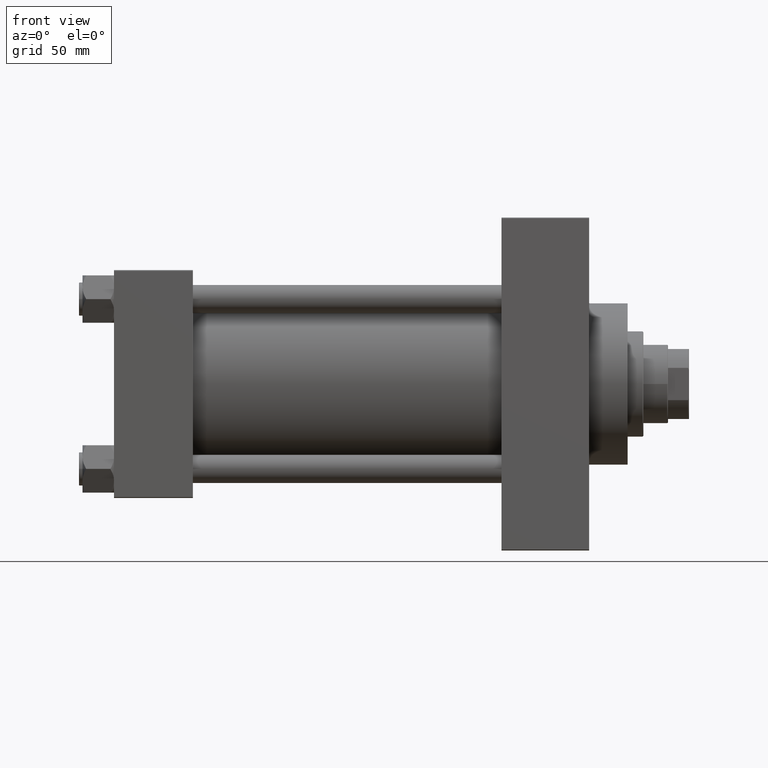
[diagram: clean part render]
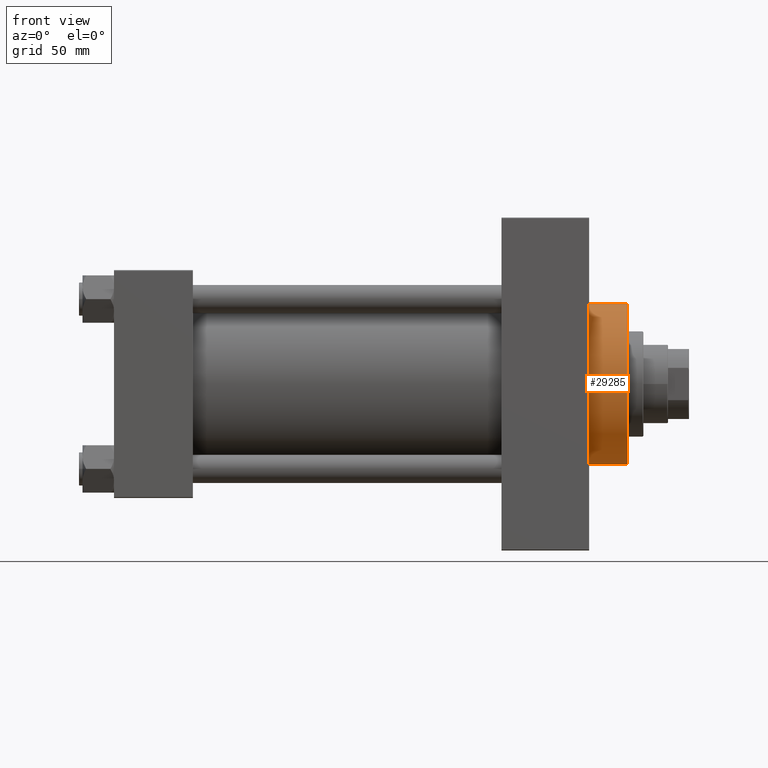
[diagram: same view with one face highlighted and labeled with its STEP entity id]
A machine part, front view. The second image highlights one B-rep face of the part: STEP entity #29285.
In plain terms, the highlighted cylindrical surface (partial cylindrical patch) has radius 46 mm, axis along (-1, -0, -0).
Its self-contained STEP definition (entity closure, byte-faithful):
#355 = FACE_OUTER_BOUND ( 'NONE', #5637, .T. ) ;
#2142 = AXIS2_PLACEMENT_3D ( 'NONE', #36860, #43428, #32505 ) ;
#2303 = CARTESIAN_POINT ( 'NONE',  ( 293.0000000000000000, 0.000000000000000000, 46.00000000000000000 ) ) ;
#4218 = DIRECTION ( 'NONE',  ( -1.000000000000000000, -0.000000000000000000, -0.000000000000000000 ) ) ;
#4730 = CARTESIAN_POINT ( 'NONE',  ( 293.0000000000000000, 0.000000000000000000, 0.000000000000000000 ) ) ;
#5637 = EDGE_LOOP ( 'NONE', ( #15236, #28985, #34839, #33032 ) ) ;
#6227 = EDGE_CURVE ( 'NONE', #11994, #42203, #41390, .T. ) ;
#7444 = CARTESIAN_POINT ( 'NONE',  ( 270.9999999999999432, 0.000000000000000000, 46.00000000000000000 ) ) ;
#7753 = CARTESIAN_POINT ( 'NONE',  ( 270.9999999999999432, 5.633375276077824704E-15, -46.00000000000000000 ) ) ;
#8598 = DIRECTION ( 'NONE',  ( 1.000000000000000000, 0.000000000000000000, 0.000000000000000000 ) ) ;
#8797 = EDGE_CURVE ( 'NONE', #46544, #18650, #38612, .T. ) ;
#11994 = VERTEX_POINT ( 'NONE', #36374 ) ;
#12921 = DIRECTION ( 'NONE',  ( 0.000000000000000000, 0.000000000000000000, -1.000000000000000000 ) ) ;
#15103 = CYLINDRICAL_SURFACE ( 'NONE', #46453, 46.00000000000000000 ) ;
#15236 = ORIENTED_EDGE ( 'NONE', *, *, #6227, .F. ) ;
#16043 = CIRCLE ( 'NONE', #2142, 46.00000000000000000 ) ;
#18501 = VECTOR ( 'NONE', #22959, 1000.000000000000000 ) ;
#18650 = VERTEX_POINT ( 'NONE', #7444 ) ;
#21576 = EDGE_CURVE ( 'NONE', #18650, #42203, #16043, .T. ) ;
#22731 = CARTESIAN_POINT ( 'NONE',  ( 293.0000000000000000, 5.633375276077824704E-15, -46.00000000000000000 ) ) ;
#22959 = DIRECTION ( 'NONE',  ( -1.000000000000000000, -0.000000000000000000, -0.000000000000000000 ) ) ;
#26538 = EDGE_CURVE ( 'NONE', #46544, #11994, #33956, .T. ) ;
#27601 = CARTESIAN_POINT ( 'NONE',  ( 293.0000000000000000, 0.000000000000000000, 46.00000000000000000 ) ) ;
#28985 = ORIENTED_EDGE ( 'NONE', *, *, #26538, .F. ) ;
#29285 = ADVANCED_FACE ( 'NONE', ( #355 ), #15103, .T. ) ;
#32505 = DIRECTION ( 'NONE',  ( 0.000000000000000000, 0.000000000000000000, -1.000000000000000000 ) ) ;
#33032 = ORIENTED_EDGE ( 'NONE', *, *, #21576, .T. ) ;
#33264 = DIRECTION ( 'NONE',  ( 0.000000000000000000, 0.000000000000000000, 1.000000000000000000 ) ) ;
#33956 = CIRCLE ( 'NONE', #40171, 46.00000000000000000 ) ;
#34839 = ORIENTED_EDGE ( 'NONE', *, *, #8797, .T. ) ;
#36374 = CARTESIAN_POINT ( 'NONE',  ( 293.0000000000000000, 5.633375276077824704E-15, -46.00000000000000000 ) ) ;
#36860 = CARTESIAN_POINT ( 'NONE',  ( 270.9999999999999432, 0.000000000000000000, 0.000000000000000000 ) ) ;
#38612 = LINE ( 'NONE', #2303, #39480 ) ;
#39480 = VECTOR ( 'NONE', #43457, 1000.000000000000000 ) ;
#40171 = AXIS2_PLACEMENT_3D ( 'NONE', #4730, #8598, #12921 ) ;
#41390 = LINE ( 'NONE', #22731, #18501 ) ;
#42203 = VERTEX_POINT ( 'NONE', #7753 ) ;
#43428 = DIRECTION ( 'NONE',  ( 1.000000000000000000, 0.000000000000000000, 0.000000000000000000 ) ) ;
#43457 = DIRECTION ( 'NONE',  ( -1.000000000000000000, -0.000000000000000000, -0.000000000000000000 ) ) ;
#45359 = CARTESIAN_POINT ( 'NONE',  ( 293.0000000000000000, 0.000000000000000000, 0.000000000000000000 ) ) ;
#46453 = AXIS2_PLACEMENT_3D ( 'NONE', #45359, #4218, #33264 ) ;
#46544 = VERTEX_POINT ( 'NONE', #27601 ) ;